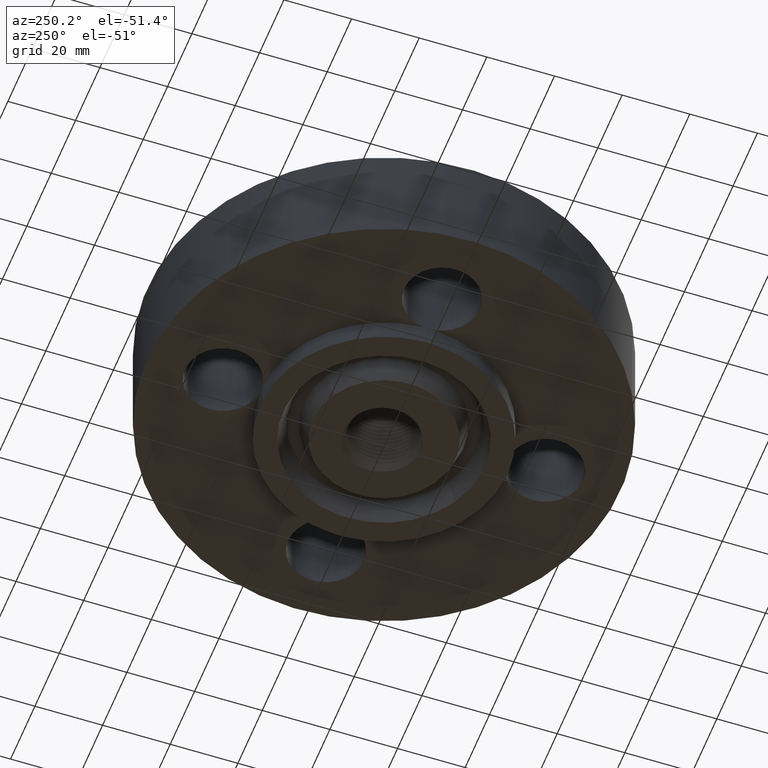
[diagram: clean part render]
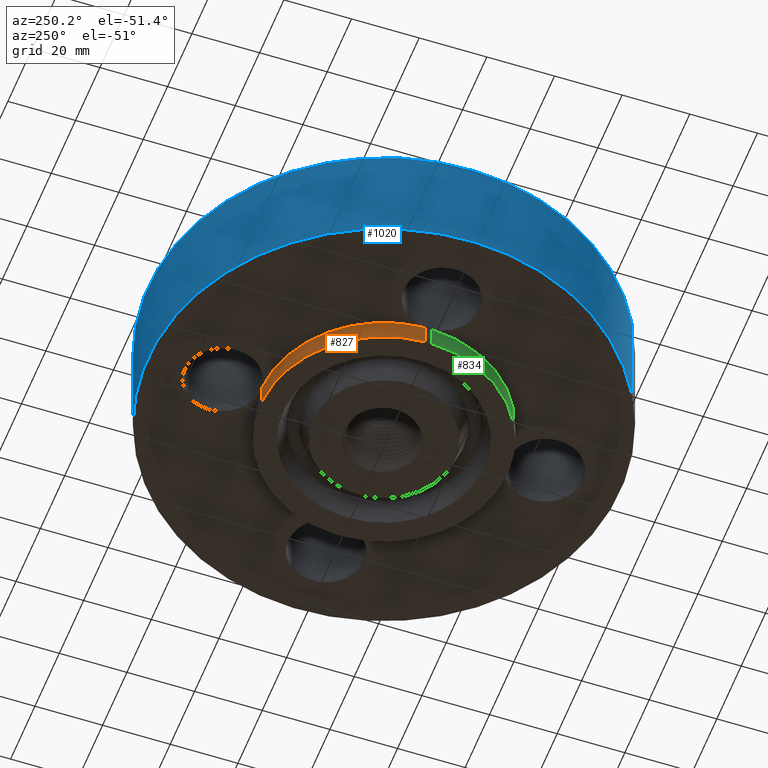
[diagram: same view with three faces highlighted in distinct colors, each labeled with its STEP entity id]
A machine part, auxiliary view with three faces highlighted in distinct colors.
Their STEP definitions:

[orange] entity #827 — the highlighted cylindrical surface (partial cylindrical patch) has radius 36.5125 mm, axis along (0, 0, -1).
#377=AXIS2_PLACEMENT_3D('Circle Axis2P3D',#375,#376,$) ;
#744=AXIS2_PLACEMENT_3D('Circle Axis2P3D',#742,#743,$) ;
#783=AXIS2_PLACEMENT_3D('Cylinder Axis2P3D',#780,#781,#782) ;
#372=CARTESIAN_POINT('Vertex',(-1.43691500001,0.0410064967415,-0.250000000001)) ;
#375=CARTESIAN_POINT('Axis2P3D Location',(0.,0.,-0.250000000001)) ;
#379=CARTESIAN_POINT('Vertex',(-0.0410064967415,1.43691500001,-0.250000000001)) ;
#457=CARTESIAN_POINT('Vertex',(-1.43691500001,0.0410064967415,0.)) ;
#460=CARTESIAN_POINT('Line Origine',(-1.43691500001,0.0410064967415,0.625000000003)) ;
#739=CARTESIAN_POINT('Vertex',(-0.0410064967415,1.43691500001,0.)) ;
#742=CARTESIAN_POINT('Axis2P3D Location',(0.,0.,0.)) ;
#780=CARTESIAN_POINT('Axis2P3D Location',(0.,0.,0.720000000003)) ;
#816=CARTESIAN_POINT('Line Origine',(-0.0410064967415,1.43691500001,-0.125)) ;
#376=DIRECTION('Axis2P3D Direction',(0.,0.,-0.0393700787402)) ;
#461=DIRECTION('Vector Direction',(0.,0.,-0.0393700787402)) ;
#743=DIRECTION('Axis2P3D Direction',(0.,0.,-0.0393700787402)) ;
#781=DIRECTION('Axis2P3D Direction',(0.,0.,-0.0393700787402)) ;
#782=DIRECTION('Axis2P3D XDirection',(0.00112308104735,0.0393540568299,0.)) ;
#817=DIRECTION('Vector Direction',(0.,0.,-0.0393700787402)) ;
#462=VECTOR('Line Direction',#461,0.0393700787402) ;
#818=VECTOR('Line Direction',#817,0.0393700787402) ;
#822=ORIENTED_EDGE('',*,*,#746,.T.) ;
#823=ORIENTED_EDGE('',*,*,#820,.T.) ;
#824=ORIENTED_EDGE('',*,*,#381,.F.) ;
#825=ORIENTED_EDGE('',*,*,#464,.F.) ;
#827=ADVANCED_FACE('PartBody',(#826),#784,.T.) ;
#378=CIRCLE('generated circle',#377,1.43750000001) ;
#745=CIRCLE('generated circle',#744,1.43750000001) ;
#784=CYLINDRICAL_SURFACE('generated cylinder',#783,1.43750000001) ;
#381=EDGE_CURVE('',#373,#380,#378,.T.) ;
#464=EDGE_CURVE('',#458,#373,#463,.T.) ;
#746=EDGE_CURVE('',#458,#740,#745,.T.) ;
#820=EDGE_CURVE('',#740,#380,#819,.T.) ;
#821=EDGE_LOOP('',(#822,#823,#824,#825)) ;
#826=FACE_OUTER_BOUND('',#821,.T.) ;
#463=LINE('Line',#460,#462) ;
#819=LINE('Line',#816,#818) ;
#373=VERTEX_POINT('',#372) ;
#380=VERTEX_POINT('',#379) ;
#458=VERTEX_POINT('',#457) ;
#740=VERTEX_POINT('',#739) ;

[blue] entity #1020 — the highlighted cylindrical surface (partial cylindrical patch) has radius 69.85 mm, axis along (0, 0, -1).
#686=AXIS2_PLACEMENT_3D('Circle Axis2P3D',#684,#685,$) ;
#981=AXIS2_PLACEMENT_3D('Cylinder Axis2P3D',#978,#979,#980) ;
#1011=AXIS2_PLACEMENT_3D('Circle Axis2P3D',#1009,#1010,$) ;
#684=CARTESIAN_POINT('Axis2P3D Location',(0.,0.,0.)) ;
#688=CARTESIAN_POINT('Vertex',(-1.31842023117,-2.41335204521,2.79741234551E-016)) ;
#690=CARTESIAN_POINT('Vertex',(1.31842023117,2.41335204521,2.79741234551E-016)) ;
#978=CARTESIAN_POINT('Axis2P3D Location',(0.,0.,0.720000000003)) ;
#983=CARTESIAN_POINT('Line Origine',(1.31842023117,2.41335204521,0.625000000003)) ;
#987=CARTESIAN_POINT('Vertex',(1.31842023117,2.41335204521,1.25000000001)) ;
#994=CARTESIAN_POINT('Vertex',(-1.31842023117,-2.41335204521,1.25000000001)) ;
#997=CARTESIAN_POINT('Line Origine',(-1.31842023117,-2.41335204521,0.625000000003)) ;
#1009=CARTESIAN_POINT('Axis2P3D Location',(0.,0.,1.25000000001)) ;
#685=DIRECTION('Axis2P3D Direction',(0.,0.,-0.0393700787402)) ;
#979=DIRECTION('Axis2P3D Direction',(0.,0.,-0.0393700787402)) ;
#980=DIRECTION('Axis2P3D XDirection',(-0.0188750212049,-0.0345504945626,0.)) ;
#984=DIRECTION('Vector Direction',(0.,0.,-0.0393700787402)) ;
#998=DIRECTION('Vector Direction',(0.,0.,-0.0393700787402)) ;
#1010=DIRECTION('Axis2P3D Direction',(0.,0.,-0.0393700787402)) ;
#985=VECTOR('Line Direction',#984,0.0393700787402) ;
#999=VECTOR('Line Direction',#998,0.0393700787402) ;
#1015=ORIENTED_EDGE('',*,*,#692,.F.) ;
#1016=ORIENTED_EDGE('',*,*,#1001,.T.) ;
#1017=ORIENTED_EDGE('',*,*,#1013,.T.) ;
#1018=ORIENTED_EDGE('',*,*,#989,.F.) ;
#1020=ADVANCED_FACE('PartBody',(#1019),#982,.T.) ;
#687=CIRCLE('generated circle',#686,2.75000000001) ;
#1012=CIRCLE('generated circle',#1011,2.75000000001) ;
#982=CYLINDRICAL_SURFACE('generated cylinder',#981,2.75000000001) ;
#692=EDGE_CURVE('',#689,#691,#687,.T.) ;
#989=EDGE_CURVE('',#691,#988,#986,.F.) ;
#1001=EDGE_CURVE('',#689,#995,#1000,.F.) ;
#1013=EDGE_CURVE('',#995,#988,#1012,.T.) ;
#1014=EDGE_LOOP('',(#1015,#1016,#1017,#1018)) ;
#1019=FACE_OUTER_BOUND('',#1014,.T.) ;
#986=LINE('Line',#983,#985) ;
#1000=LINE('Line',#997,#999) ;
#689=VERTEX_POINT('',#688) ;
#691=VERTEX_POINT('',#690) ;
#988=VERTEX_POINT('',#987) ;
#995=VERTEX_POINT('',#994) ;

[green] entity #834 — the highlighted cylindrical surface (partial cylindrical patch) has radius 36.5125 mm, axis along (0, 0, -1).
#363=AXIS2_PLACEMENT_3D('Circle Axis2P3D',#361,#362,$) ;
#749=AXIS2_PLACEMENT_3D('Circle Axis2P3D',#747,#748,$) ;
#783=AXIS2_PLACEMENT_3D('Cylinder Axis2P3D',#780,#781,#782) ;
#358=CARTESIAN_POINT('Vertex',(-0.689174211746,-1.26152493272,-0.250000000001)) ;
#361=CARTESIAN_POINT('Axis2P3D Location',(0.,0.,-0.250000000001)) ;
#365=CARTESIAN_POINT('Vertex',(-1.43691500001,-0.0410064967415,-0.250000000001)) ;
#465=CARTESIAN_POINT('Line Origine',(-1.43691500001,-0.0410064967415,0.625000000003)) ;
#469=CARTESIAN_POINT('Vertex',(-1.43691500001,-0.0410064967415,0.)) ;
#747=CARTESIAN_POINT('Axis2P3D Location',(0.,0.,0.)) ;
#751=CARTESIAN_POINT('Vertex',(-0.689174211746,-1.26152493272,0.)) ;
#780=CARTESIAN_POINT('Axis2P3D Location',(0.,0.,0.720000000003)) ;
#797=CARTESIAN_POINT('Line Origine',(-0.689174211746,-1.26152493272,-0.125)) ;
#362=DIRECTION('Axis2P3D Direction',(0.,0.,-0.0393700787402)) ;
#466=DIRECTION('Vector Direction',(0.,0.,-0.0393700787402)) ;
#748=DIRECTION('Axis2P3D Direction',(0.,0.,-0.0393700787402)) ;
#781=DIRECTION('Axis2P3D Direction',(0.,0.,-0.0393700787402)) ;
#782=DIRECTION('Axis2P3D XDirection',(0.00112308104735,0.0393540568299,0.)) ;
#798=DIRECTION('Vector Direction',(0.,0.,-0.0393700787402)) ;
#467=VECTOR('Line Direction',#466,0.0393700787402) ;
#799=VECTOR('Line Direction',#798,0.0393700787402) ;
#829=ORIENTED_EDGE('',*,*,#367,.F.) ;
#830=ORIENTED_EDGE('',*,*,#801,.T.) ;
#831=ORIENTED_EDGE('',*,*,#753,.T.) ;
#832=ORIENTED_EDGE('',*,*,#471,.T.) ;
#834=ADVANCED_FACE('PartBody',(#833),#784,.T.) ;
#364=CIRCLE('generated circle',#363,1.43750000001) ;
#750=CIRCLE('generated circle',#749,1.43750000001) ;
#784=CYLINDRICAL_SURFACE('generated cylinder',#783,1.43750000001) ;
#367=EDGE_CURVE('',#359,#366,#364,.T.) ;
#471=EDGE_CURVE('',#470,#366,#468,.T.) ;
#753=EDGE_CURVE('',#752,#470,#750,.T.) ;
#801=EDGE_CURVE('',#359,#752,#800,.F.) ;
#828=EDGE_LOOP('',(#829,#830,#831,#832)) ;
#833=FACE_OUTER_BOUND('',#828,.T.) ;
#468=LINE('Line',#465,#467) ;
#800=LINE('Line',#797,#799) ;
#359=VERTEX_POINT('',#358) ;
#366=VERTEX_POINT('',#365) ;
#470=VERTEX_POINT('',#469) ;
#752=VERTEX_POINT('',#751) ;